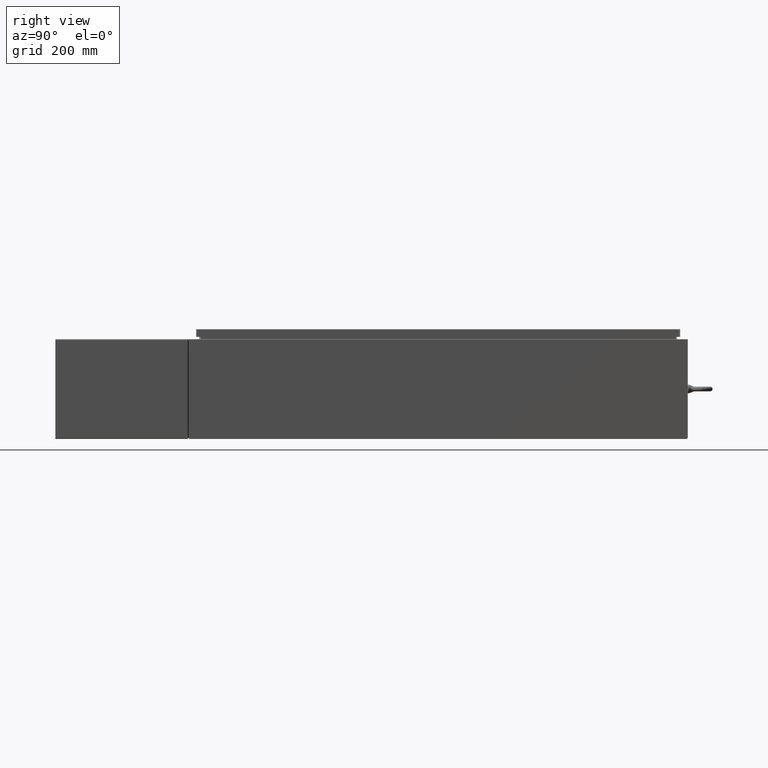
[diagram: clean part render]
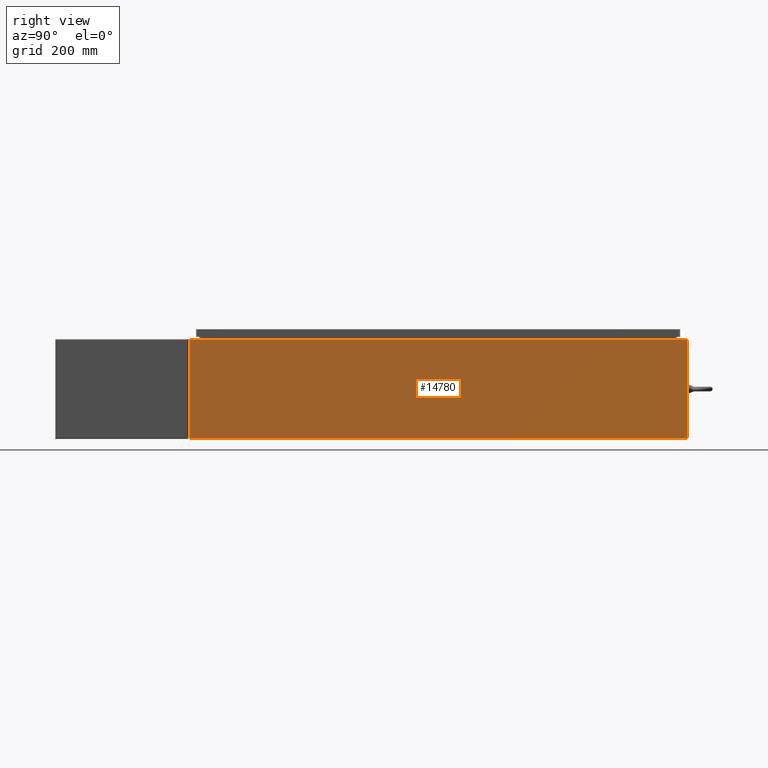
[diagram: same view with one face highlighted and labeled with its STEP entity id]
A machine part, right view. The second image highlights one B-rep face of the part: STEP entity #14780.
In plain terms, the highlighted planar face has unit normal (-1, 0, 0).
Its self-contained STEP definition (entity closure, byte-faithful):
#823 = VERTEX_POINT ( 'NONE', #28939 ) ;
#2159 = LINE ( 'NONE', #30912, #39207 ) ;
#5215 = VERTEX_POINT ( 'NONE', #58619 ) ;
#9553 = VECTOR ( 'NONE', #37065, 39.37007874015748100 ) ;
#14780 = ADVANCED_FACE ( 'NONE', ( #48200 ), #43468, .F. ) ;
#16241 = VERTEX_POINT ( 'NONE', #21661 ) ;
#16471 = DIRECTION ( 'NONE',  ( -3.482016343714355500E-015, 0.0000000000000000000, -1.000000000000000000 ) ) ;
#17717 = CARTESIAN_POINT ( 'NONE',  ( 17.99999999999999600, 29.92529999999998900, -6.293710784286996200E-014 ) ) ;
#17886 = EDGE_CURVE ( 'NONE', #5215, #823, #2159, .T. ) ;
#18425 = ORIENTED_EDGE ( 'NONE', *, *, #39243, .T. ) ;
#21661 = CARTESIAN_POINT ( 'NONE',  ( 18.00000000000003900, 29.92529999999999300, 11.83760000000000200 ) ) ;
#22753 = ORIENTED_EDGE ( 'NONE', *, *, #17886, .F. ) ;
#23265 = LINE ( 'NONE', #59744, #47427 ) ;
#26105 = VERTEX_POINT ( 'NONE', #52521 ) ;
#28939 = CARTESIAN_POINT ( 'NONE',  ( 17.99999999999999600, -29.92530000000001100, 0.01299999999999984700 ) ) ;
#30912 = CARTESIAN_POINT ( 'NONE',  ( 17.99999999999999600, -29.92530000000001100, 0.01299999999999984700 ) ) ;
#32212 = CARTESIAN_POINT ( 'NONE',  ( 18.00000000000003900, 29.92529999999999300, 11.83760000000000200 ) ) ;
#32249 = DIRECTION ( 'NONE',  ( 3.482016343714355500E-015, 0.0000000000000000000, 1.000000000000000000 ) ) ;
#34756 = ORIENTED_EDGE ( 'NONE', *, *, #52851, .T. ) ;
#36807 = LINE ( 'NONE', #32212, #9553 ) ;
#37065 = DIRECTION ( 'NONE',  ( -0.0000000000000000000, -1.000000000000000000, -0.0000000000000000000 ) ) ;
#39207 = VECTOR ( 'NONE', #56695, 39.37007874015748100 ) ;
#39243 = EDGE_CURVE ( 'NONE', #16241, #26105, #36807, .T. ) ;
#41011 = EDGE_CURVE ( 'NONE', #5215, #16241, #61512, .T. ) ;
#43143 = CARTESIAN_POINT ( 'NONE',  ( 17.99999999999999600, 0.0000000000000000000, -6.293710784286996200E-014 ) ) ;
#43468 = PLANE ( 'NONE',  #56739 ) ;
#46830 = DIRECTION ( 'NONE',  ( 3.482016343714355100E-015, 0.0000000000000000000, 1.000000000000000000 ) ) ;
#46955 = DIRECTION ( 'NONE',  ( -1.000000000000000000, 0.0000000000000000000, 3.482016343714355100E-015 ) ) ;
#47427 = VECTOR ( 'NONE', #16471, 39.37007874015748100 ) ;
#47986 = EDGE_LOOP ( 'NONE', ( #18425, #34756, #22753, #53204 ) ) ;
#48200 = FACE_OUTER_BOUND ( 'NONE', #47986, .T. ) ;
#48658 = VECTOR ( 'NONE', #32249, 39.37007874015748100 ) ;
#52521 = CARTESIAN_POINT ( 'NONE',  ( 18.00000000000003900, -29.92530000000001100, 11.83760000000000200 ) ) ;
#52851 = EDGE_CURVE ( 'NONE', #26105, #823, #23265, .T. ) ;
#53204 = ORIENTED_EDGE ( 'NONE', *, *, #41011, .T. ) ;
#56695 = DIRECTION ( 'NONE',  ( -0.0000000000000000000, -1.000000000000000000, -0.0000000000000000000 ) ) ;
#56739 = AXIS2_PLACEMENT_3D ( 'NONE', #43143, #46955, #46830 ) ;
#58619 = CARTESIAN_POINT ( 'NONE',  ( 17.99999999999999600, 29.92529999999999300, 0.01299999999999984700 ) ) ;
#59744 = CARTESIAN_POINT ( 'NONE',  ( 17.99999999999999600, -29.92530000000001100, -6.293710784286996200E-014 ) ) ;
#61512 = LINE ( 'NONE', #17717, #48658 ) ;